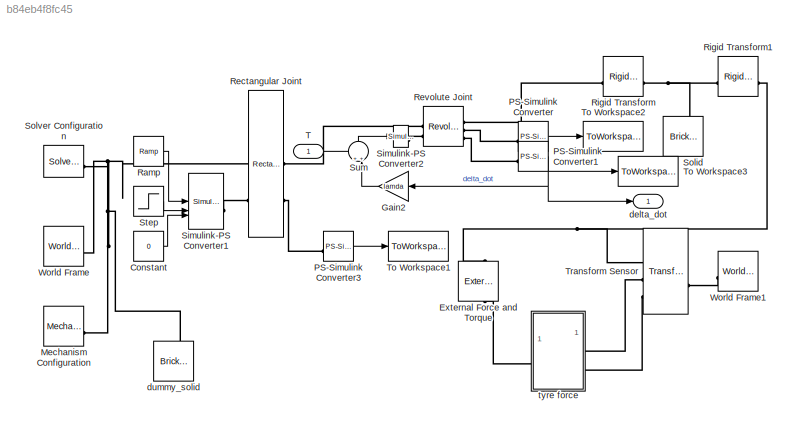
MODEL slx_b84eb4f8fc45
KIND model
CONFIG AbsTol = auto
CONFIG EnableMultiTasking = on
CONFIG FixedStep = 0.001
CONFIG MaxStep = auto
CONFIG MinStep = auto
CONFIG RelTol = 1e-3
CONFIG SampleTimeConstraint = Unconstrained
CONFIG SolverName = ode3
CONFIG StartTime = 0.0
CONFIG StopTime = 4
BLOCK [Constant] Constant
  Value = 0
BLOCK [Reference] External Force and Torque  REF=sm_lib/Forces and
Torques/External Force
and Torque
  NameLocation = right
  SourceBlock = sm_lib/Forces and\nTorques/External Force\nand Torque
  SourceType = External Force\nand Torque
BLOCK [Gain] Gain2
  Gain = lamda
  NameLocation = top
BLOCK [Reference] Mechanism Configuration  REF=sm_lib/Utilities/Mechanism
Configuration
  SourceBlock = sm_lib/Utilities/Mechanism\nConfiguration
  SourceType = Mechanism\nConfiguration
BLOCK [Reference] PS-Simulink Converter  REF=nesl_utility/PS-Simulink
Converter
  SourceBlock = nesl_utility/PS-Simulink\nConverter
  SourceType = PS-Simulink\nConverter
BLOCK [Reference] PS-Simulink Converter1  REF=nesl_utility/PS-Simulink
Converter
  SourceBlock = nesl_utility/PS-Simulink\nConverter
  SourceType = PS-Simulink\nConverter
BLOCK [Reference] PS-Simulink Converter3  REF=nesl_utility/PS-Simulink
Converter
  SourceBlock = nesl_utility/PS-Simulink\nConverter
  SourceType = PS-Simulink\nConverter
BLOCK [Reference] Ramp  REF=simulink/Sources/Ramp
  SourceBlock = simulink/Sources/Ramp
  SourceType = Ramp
BLOCK [Reference] Rectangular Joint  REF=sm_lib/Joints/Rectangular
Joint
  SourceBlock = sm_lib/Joints/Rectangular\nJoint
  SourceType = Rectangular\nJoint
BLOCK [Reference] Revolute Joint  REF=sm_lib/Joints/Revolute Joint
  SourceBlock = sm_lib/Joints/Revolute Joint
  SourceType = Revolute Joint
BLOCK [Reference] Rigid Transform  REF=sm_lib/Frames and
Transforms/Rigid
Transform
  SourceBlock = sm_lib/Frames and\nTransforms/Rigid\nTransform
  SourceType = Rigid\nTransform
BLOCK [Reference] Rigid Transform1  REF=sm_lib/Frames and
Transforms/Rigid
Transform
  SourceBlock = sm_lib/Frames and\nTransforms/Rigid\nTransform
  SourceType = Rigid\nTransform
BLOCK [Reference] Simulink-PS Converter1  REF=nesl_utility/Simulink-PS
Converter
  SourceBlock = nesl_utility/Simulink-PS\nConverter
  SourceType = Simulink-PS\nConverter
BLOCK [Reference] Simulink-PS Converter2  REF=nesl_utility/Simulink-PS
Converter
  SourceBlock = nesl_utility/Simulink-PS\nConverter
  SourceType = Simulink-PS\nConverter
BLOCK [Reference] Solid  REF=sm_lib/Body Elements/Brick Solid
  NameLocation = right
  SourceBlock = sm_lib/Body Elements/Brick Solid
  SourceType = Brick Solid
BLOCK [Reference] Solver Configuration  REF=nesl_utility/Solver
Configuration
  SourceBlock = nesl_utility/Solver\nConfiguration
  SourceType = Solver\nConfiguration
BLOCK [Step] Step
  After = speed
  SampleTime = 0
  Time = 0
BLOCK [Sum] Sum
  Inputs = ++|
  NameLocation = left
BLOCK [Inport] T
BLOCK [ToWorkspace] To Workspace1
  FixptAsFi = on
  MaxDataPoints = inf
  SampleTime = -1
  SaveFormat = Structure With Time
  VariableName = y_pin
BLOCK [ToWorkspace] To Workspace2
  FixptAsFi = on
  MaxDataPoints = inf
  SampleTime = -1
  SaveFormat = Structure With Time
  VariableName = z_forks
BLOCK [ToWorkspace] To Workspace3
  FixptAsFi = on
  MaxDataPoints = inf
  SampleTime = -1
  SaveFormat = Structure With Time
  VariableName = Delta_dot
BLOCK [Reference] Transform Sensor  REF=sm_lib/Frames and
Transforms/Transform
Sensor
  SourceBlock = sm_lib/Frames and\nTransforms/Transform\nSensor
  SourceType = Transform\nSensor
BLOCK [Reference] World Frame  REF=sm_lib/Frames and
Transforms/World Frame
  SourceBlock = sm_lib/Frames and\nTransforms/World Frame
  SourceType = World Frame
BLOCK [Reference] World Frame1  REF=sm_lib/Frames and
Transforms/World Frame
  SourceBlock = sm_lib/Frames and\nTransforms/World Frame
  SourceType = World Frame
BLOCK [Outport] delta_dot
BLOCK [Reference] dummy_solid  REF=sm_lib/Body Elements/Brick Solid
  NameLocation = right
  SourceBlock = sm_lib/Body Elements/Brick Solid
  SourceType = Brick Solid
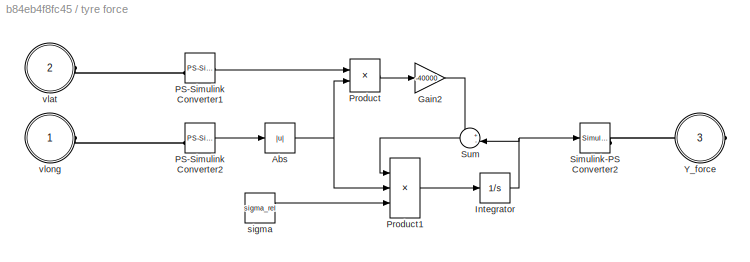
BLOCK [SubSystem] tyre force
BLOCK [Abs] tyre force/Abs
  SaturateOnIntegerOverflow = off
BLOCK [Gain] tyre force/Gain2
  Gain = -40000
BLOCK [Integrator] tyre force/Integrator
BLOCK [Reference] tyre force/PS-Simulink Converter1  REF=nesl_utility/PS-Simulink
Converter
  SourceBlock = nesl_utility/PS-Simulink\nConverter
  SourceType = PS-Simulink\nConverter
BLOCK [Reference] tyre force/PS-Simulink Converter2  REF=nesl_utility/PS-Simulink
Converter
  SourceBlock = nesl_utility/PS-Simulink\nConverter
  SourceType = PS-Simulink\nConverter
BLOCK [Product] tyre force/Product
  Inputs = */
BLOCK [Product] tyre force/Product1
  Inputs = **/
BLOCK [Reference] tyre force/Simulink-PS Converter2  REF=nesl_utility/Simulink-PS
Converter
  SourceBlock = nesl_utility/Simulink-PS\nConverter
  SourceType = Simulink-PS\nConverter
BLOCK [Sum] tyre force/Sum
  Inputs = +-|
BLOCK [PMIOPort] tyre force/Y_force
  Port = 3
  Side = Right
BLOCK [Constant] tyre force/sigma
  Value = sigma_rel
BLOCK [PMIOPort] tyre force/vlat
  Port = 2
  Side = Left
BLOCK [PMIOPort] tyre force/vlong
  Side = Left
LINE Constant:1 -> Simulink-PS Converter1:3
LINE Gain2:1 -> Sum:2
NET PS-Simulink Converter1:1 -> Gain2:1, To Workspace3:1, delta_dot:1
LINE PS-Simulink Converter3:1 -> To Workspace1:1
LINE PS-Simulink Converter:1 -> To Workspace2:1
LINE Ramp:1 -> Simulink-PS Converter1:1
LINE Step:1 -> Simulink-PS Converter1:2
LINE Sum:1 -> Simulink-PS Converter2:1
LINE T:1 -> Sum:1
NET tyre force/Abs:1 -> tyre force/Product1:2, tyre force/Product:2
LINE tyre force/Gain2:1 -> tyre force/Sum:1
NET tyre force/Integrator:1 -> tyre force/Simulink-PS Converter2:1, tyre force/Sum:2
LINE tyre force/PS-Simulink Converter1:1 -> tyre force/Product:1
LINE tyre force/PS-Simulink Converter2:1 -> tyre force/Abs:1
LINE tyre force/Product1:1 -> tyre force/Integrator:1
LINE tyre force/Product:1 -> tyre force/Gain2:1
LINE tyre force/Sum:1 -> tyre force/Product1:1
LINE tyre force/sigma:1 -> tyre force/Product1:3
PLINE External Force and Torque:LConn1 -- tyre force:RConn1
PNET net1: External Force and Torque:RConn1 -- Rigid Transform1:RConn1 -- Transform Sensor:RConn1
PNET net2: Mechanism Configuration:RConn1 -- Rectangular Joint:LConn1 -- Solver Configuration:RConn1 -- World Frame:RConn1 -- dummy_solid:RConn1
PLINE PS-Simulink Converter1:LConn1 -- Revolute Joint:RConn3
PLINE PS-Simulink Converter3:LConn1 -- Rectangular Joint:RConn2
PLINE PS-Simulink Converter:LConn1 -- Revolute Joint:RConn2
PLINE Rectangular Joint:LConn2 -- Simulink-PS Converter1:RConn1
PLINE Rectangular Joint:RConn1 -- Revolute Joint:LConn1
PLINE Revolute Joint:LConn2 -- Simulink-PS Converter2:RConn1
PLINE Revolute Joint:RConn1 -- Rigid Transform:RConn1
PNET net3: Rigid Transform1:LConn1 -- Rigid Transform:LConn1 -- Solid:RConn1
PLINE Transform Sensor:LConn1 -- World Frame1:RConn1
PLINE Transform Sensor:RConn2 -- tyre force:LConn1
PLINE Transform Sensor:RConn3 -- tyre force:LConn2
PLINE tyre force/PS-Simulink Converter1:LConn1 -- tyre force/vlat:RConn1
PLINE tyre force/PS-Simulink Converter2:LConn1 -- tyre force/vlong:RConn1
PLINE tyre force/Simulink-PS Converter2:RConn1 -- tyre force/Y_force:RConn1
note: NET lines group one-source signal fan-out (src -> all destinations, sorted); 1:1 wires keep LINE; PNET lines group multi-terminal physical nets as a canonical sorted terminal list (undirected conserving connections); 2-terminal nets keep the pairwise PLINE form
